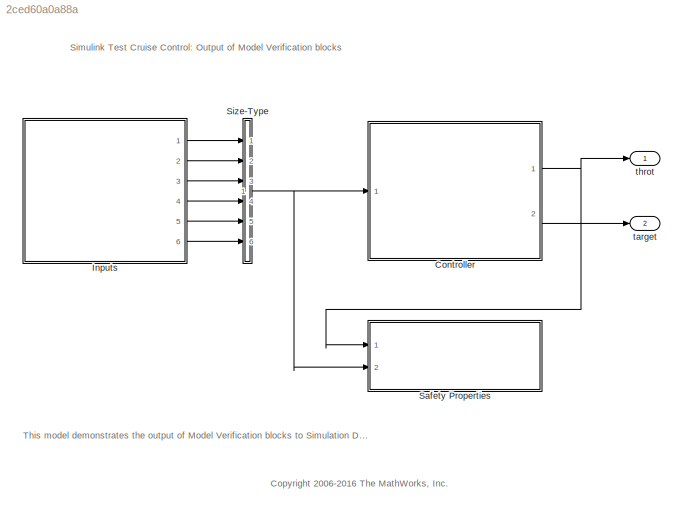
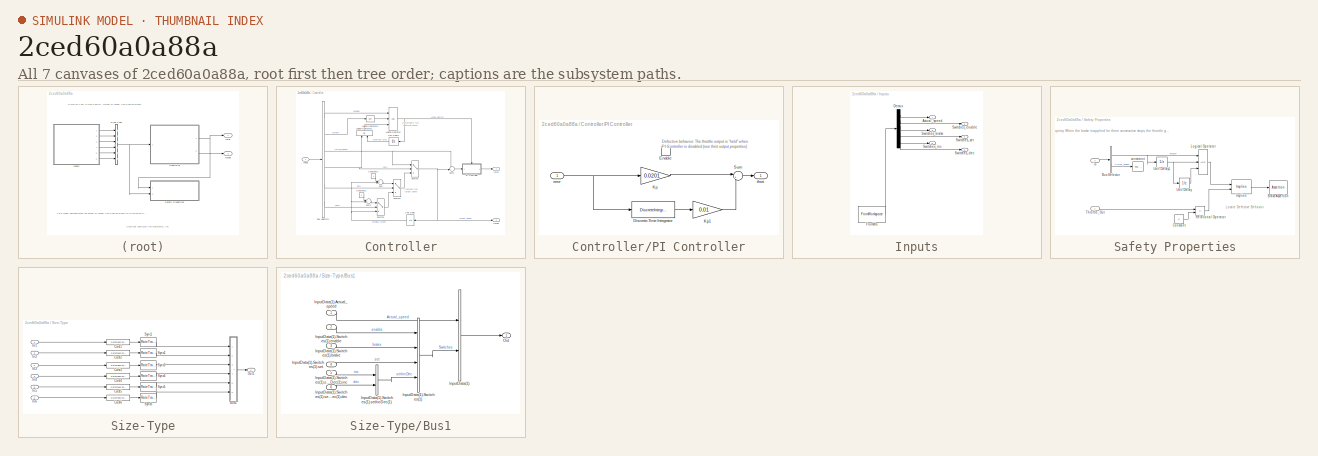
[diagram: thumbnail index - all 7 canvases of the model, root first then tree order]
MODEL slx_2ced60a0a88a
KIND model
CONFIG AbsTol = auto
CONFIG EnableMultiTasking = on
CONFIG FixedStep = 0.01
CONFIG MaxStep = auto
CONFIG MinStep = auto
CONFIG PostLoadFcn = load('sltest_cruise_control_hierbus.mat');
CONFIG RelTol = 1e-3
CONFIG SampleTimeConstraint = Unconstrained
CONFIG Solver = FixedStepDiscrete
CONFIG SolverName = FixedStepDiscrete
CONFIG StartTime = 0.0
CONFIG StopTime = 1
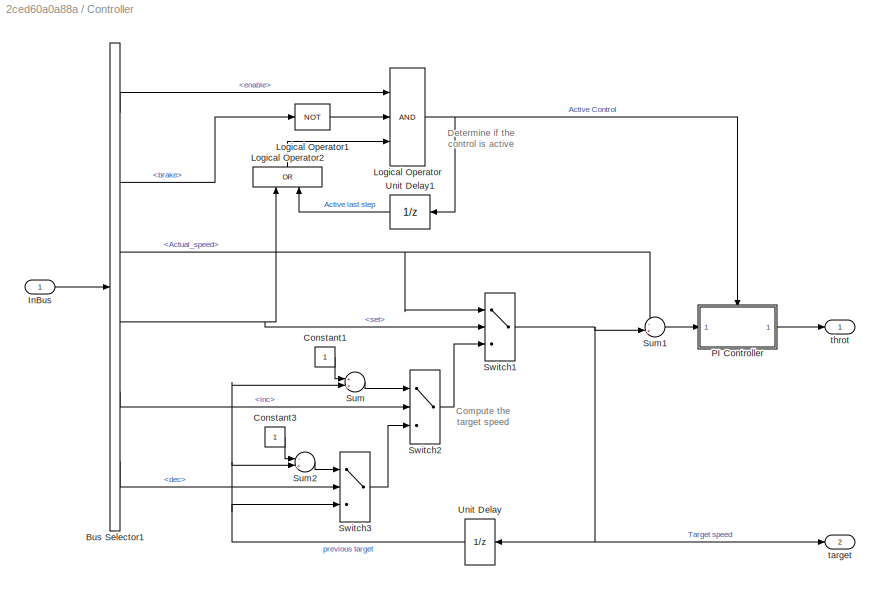
BLOCK [SubSystem] Controller
  Ports = [1, 2]
  RequestExecContextInheritance = off
BLOCK [BusSelector] Controller/Bus Selector1
  OutputAsBus = off
  OutputSignals = Switches.enable,Switches.brake,Actual_speed,Switches.set,Switches.setIncDec.inc,Switches.setIncDec.dec
  Ports = [1, 6]
BLOCK [Constant] Controller/Constant1
BLOCK [Constant] Controller/Constant3
BLOCK [Inport] Controller/InBus
  IconDisplay = Port number
  OutDataTypeStr = Bus: InputBus
BLOCK [Logic] Controller/Logical Operator
  AllPortsSameDT = off
  Inputs = 3
  OutDataTypeStr = boolean
  Ports = [3, 1]
BLOCK [Logic] Controller/Logical Operator1
  AllPortsSameDT = off
  Operator = NOT
  OutDataTypeStr = boolean
  Ports = [1, 1]
BLOCK [Logic] Controller/Logical Operator2
  AllPortsSameDT = off
  Operator = OR
  OutDataTypeStr = boolean
  Ports = [2, 1]
BLOCK [SubSystem] Controller/PI Controller
  Ports = [1, 1, 1]
  RequestExecContextInheritance = off
BLOCK [DiscreteIntegrator] Controller/PI Controller/Discrete-Time Integrator
  ICPrevOutput = DiscIntNeverNeededParam
  ICPrevScaledInput = DiscIntNeverNeededParam
  LimitOutput = on
  LowerSaturationLimit = -5
  Ports = [1, 1]
  SampleTime = 0.01
  UpperSaturationLimit = 5
BLOCK [EnablePort] Controller/PI Controller/Enable
  Ports = []
  PropagateVarSize = During execution
BLOCK [Gain] Controller/PI Controller/Kp
  Gain = 0.0201
  OutDataTypeStr = Inherit: Inherit via internal rule
  ParamDataTypeStr = Inherit: Inherit via internal rule
  SaturateOnIntegerOverflow = off
BLOCK [Gain] Controller/PI Controller/Kp1
  Gain = 0.01
  OutDataTypeStr = Inherit: Inherit via internal rule
  ParamDataTypeStr = Inherit: Inherit via internal rule
  SaturateOnIntegerOverflow = off
BLOCK [Sum] Controller/PI Controller/Sum
  IconShape = round
  InputSameDT = off
  Inputs = |++
  OutDataTypeStr = Inherit: Inherit via internal rule
  Ports = [2, 1]
  SaturateOnIntegerOverflow = off
BLOCK [Inport] Controller/PI Controller/error
  IconDisplay = Port number
BLOCK [Outport] Controller/PI Controller/throt
  IconDisplay = Port number
  InitialOutput = 0
  OutputWhenDisabled = reset
BLOCK [Sum] Controller/Sum
  IconShape = round
  InputSameDT = off
  Inputs = ++|
  OutDataTypeStr = Inherit: Inherit via internal rule
  Ports = [2, 1]
  SaturateOnIntegerOverflow = off
BLOCK [Sum] Controller/Sum1
  IconShape = round
  InputSameDT = off
  Inputs = -+|
  OutDataTypeStr = Inherit: Inherit via internal rule
  Ports = [2, 1]
  SaturateOnIntegerOverflow = off
BLOCK [Sum] Controller/Sum2
  IconShape = round
  InputSameDT = off
  Inputs = -+|
  OutDataTypeStr = Inherit: Inherit via internal rule
  Ports = [2, 1]
  SaturateOnIntegerOverflow = off
BLOCK [Switch] Controller/Switch1
  Criteria = u2 ~= 0
  InputSameDT = off
  SaturateOnIntegerOverflow = off
BLOCK [Switch] Controller/Switch2
  Criteria = u2 ~= 0
  InputSameDT = off
  SaturateOnIntegerOverflow = off
BLOCK [Switch] Controller/Switch3
  Criteria = u2 ~= 0
  InputSameDT = off
  SaturateOnIntegerOverflow = off
BLOCK [UnitDelay] Controller/Unit Delay
  SampleTime = 0.01
BLOCK [UnitDelay] Controller/Unit Delay1
  SampleTime = 0.01
BLOCK [Outport] Controller/target
  IconDisplay = Port number
  Port = 2
BLOCK [Outport] Controller/throt
  IconDisplay = Port number
BLOCK [SubSystem] Inputs
  ClipboardFcn = sigbuilder_block('clipboard');
  CloseFcn = sigbuilder_block('close');
  ContinueFcn = sigbuilder_block('continue');
  CopyFcn = sigbuilder_block('copy');
  DeleteFcn = sigbuilder_block('delete');
  LoadFcn = sigbuilder_block('load');
  MaskHideContents = on
  ModelCloseFcn = sigbuilder_block('modelClose');
  NameChangeFcn = sigbuilder_block('namechange');
  OpenFcn = sigbuilder_block('open',[171 169.5 519.75 474 ]);
  PauseFcn = sigbuilder_block('pause');
  Ports = [0, 6]
  PreSaveFcn = sigbuilder_block('preSave');
  RequestExecContextInheritance = off
  StartFcn = sigbuilder_block('start');
  StopFcn = sigbuilder_block('stop');
  Tag = STV Subsys
BLOCK [Outport] Inputs/Actual_speed
  IconDisplay = Port number
  Tag = STV Outport
BLOCK [Demux] Inputs/Demux
  Outputs = 6
  Ports = [1, 6]
  Tag = STV Demux
BLOCK [FromWorkspace] Inputs/FromWs
  SampleTime = 0
  Tag = STV FromWs
  VariableName = tuvar
BLOCK [Outport] Inputs/Switches_brake
  IconDisplay = Port number
  Port = 3
  Tag = STV Outport
BLOCK [Outport] Inputs/Switches_dec
  IconDisplay = Port number
  Port = 6
  Tag = STV Outport
BLOCK [Outport] Inputs/Switches_enable
  IconDisplay = Port number
  Port = 2
  Tag = STV Outport
BLOCK [Outport] Inputs/Switches_inc
  IconDisplay = Port number
  Port = 5
  Tag = STV Outport
BLOCK [Outport] Inputs/Switches_set
  IconDisplay = Port number
  Port = 4
  Tag = STV Outport
BLOCK [SubSystem] Safety Properties
  CopyFcn = sldvsubsys('copy');
  DisableCoverage = on
  LoadFcn = sldvsubsys('check')
  OpenFcn = open_system(gcb,'force');
  Ports = [2]
  PreSaveFcn = set_param(gcb,'SimViewingDevice','on');\nsldvsubsys('check');
  RequestExecContextInheritance = off
  SimViewingDevice = on
  Tag = VerificationSubsystem
  TreatAsAtomicUnit = on
BLOCK [Assertion] Safety Properties/BrakeAssertion
  StopWhenAssertionFail = off
BLOCK [BusSelector] Safety Properties/Bus Selector
  OutputAsBus = off
  OutputSignals = Switches.brake,Actual_speed
  Ports = [1, 2]
BLOCK [Constant] Safety Properties/Constant
  Value = 0
BLOCK [Reference] Safety Properties/Implies  REF=sldvlib/Verification Utilities/Implies
  Ports = [2, 1]
  SourceBlock = sldvlib/Verification Utilities/Implies
  SourceProductBaseCode = DV
  SourceProductName = Simulink Design Verifier
  SourceType = Design Verifier Implies
BLOCK [Logic] Safety Properties/Logical Operator
  AllPortsSameDT = off
  Inputs = 3
  OutDataTypeStr = boolean
  Ports = [3, 1]
BLOCK [RelationalOperator] Safety Properties/Relational Operator
  InputSameDT = off
  Operator = <=
  OutDataTypeStr = boolean
  Ports = [2, 1]
BLOCK [Inport] Safety Properties/Throttle_Out
  IconDisplay = Port number
BLOCK [UnitDelay] Safety Properties/Unit Delay
  SampleTime = -1
BLOCK [UnitDelay] Safety Properties/Unit Delay1
  SampleTime = -1
BLOCK [Reference] Safety Properties/constraint  REF=sldvlib/Objectives and Constraints/Test Condition
  AttributesFormatString = %<intervals>
  Ports = [1]
  SourceBlock = sldvlib/Objectives and Constraints/Test Condition
  SourceProductBaseCode = DV
  SourceProductName = Simulink Design Verifier
  SourceType = Design Verifier Assumption
BLOCK [Inport] Safety Properties/in
  IconDisplay = Port number
  OutDataTypeStr = Bus: InputBus
  Port = 2
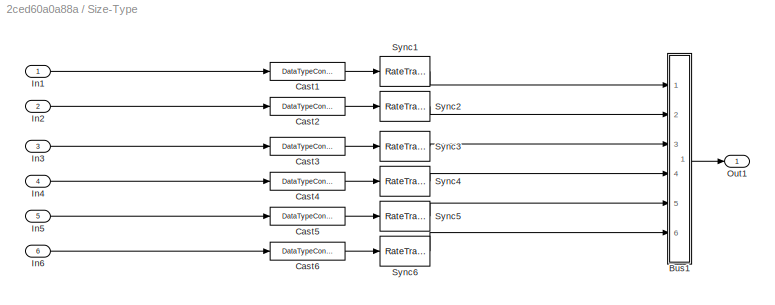
BLOCK [SubSystem] Size-Type
  Ports = [6, 1]
  RequestExecContextInheritance = off
BLOCK [SubSystem] Size-Type/Bus1
  Ports = [6, 1]
  RequestExecContextInheritance = off
BLOCK [BusCreator] Size-Type/Bus1/InputData(1)
  InheritFromInputs = on
  Inputs = 2
  NonVirtualBus = on
  OutDataTypeStr = Bus: InputBus
  Ports = [2, 1]
BLOCK [Inport] Size-Type/Bus1/InputData(1).Actual_speed
  IconDisplay = Port number
BLOCK [BusCreator] Size-Type/Bus1/InputData(1).Switches(1)
  InheritFromInputs = on
  Inputs = 4
  NonVirtualBus = on
  OutDataTypeStr = Bus: Switches
  Ports = [4, 1]
BLOCK [Inport] Size-Type/Bus1/InputData(1).Switches(1).brake
  IconDisplay = Port number
  Port = 3
BLOCK [Inport] Size-Type/Bus1/InputData(1).Switches(1).enable
  IconDisplay = Port number
  Port = 2
BLOCK [Inport] Size-Type/Bus1/InputData(1).Switches(1).set
  IconDisplay = Port number
  Port = 4
BLOCK [BusCreator] Size-Type/Bus1/InputData(1).Switches(1).setIncDec(1)
  InheritFromInputs = on
  Inputs = 2
  NonVirtualBus = on
  OutDataTypeStr = Bus: setpoint
  Ports = [2, 1]
BLOCK [Inport] Size-Type/Bus1/InputData(1).Switches(1).setIncDec(1).dec
  IconDisplay = Port number
  Port = 6
BLOCK [Inport] Size-Type/Bus1/InputData(1).Switches(1).setIncDec(1).inc
  IconDisplay = Port number
  Port = 5
BLOCK [Outport] Size-Type/Bus1/Out
  IconDisplay = Port number
BLOCK [DataTypeConversion] Size-Type/Cast1
  OutDataTypeStr = double
  RndMeth = Nearest
BLOCK [DataTypeConversion] Size-Type/Cast2
  OutDataTypeStr = boolean
  RndMeth = Nearest
BLOCK [DataTypeConversion] Size-Type/Cast3
  OutDataTypeStr = boolean
  RndMeth = Nearest
BLOCK [DataTypeConversion] Size-Type/Cast4
  OutDataTypeStr = boolean
  RndMeth = Nearest
BLOCK [DataTypeConversion] Size-Type/Cast5
  OutDataTypeStr = boolean
  RndMeth = Nearest
BLOCK [DataTypeConversion] Size-Type/Cast6
  OutDataTypeStr = boolean
  RndMeth = Nearest
BLOCK [Inport] Size-Type/In1
  IconDisplay = Port number
BLOCK [Inport] Size-Type/In2
  IconDisplay = Port number
  Port = 2
BLOCK [Inport] Size-Type/In3
  IconDisplay = Port number
  Port = 3
BLOCK [Inport] Size-Type/In4
  IconDisplay = Port number
  Port = 4
BLOCK [Inport] Size-Type/In5
  IconDisplay = Port number
  Port = 5
BLOCK [Inport] Size-Type/In6
  IconDisplay = Port number
  Port = 6
BLOCK [Outport] Size-Type/Out1
  IconDisplay = Port number
BLOCK [RateTransition] Size-Type/Sync1
  OutPortSampleTime = [0.01,0]
BLOCK [RateTransition] Size-Type/Sync2
  OutPortSampleTime = [0.01,0]
BLOCK [RateTransition] Size-Type/Sync3
  OutPortSampleTime = [0.01,0]
BLOCK [RateTransition] Size-Type/Sync4
  OutPortSampleTime = [0.01,0]
BLOCK [RateTransition] Size-Type/Sync5
  OutPortSampleTime = [0.01,0]
BLOCK [RateTransition] Size-Type/Sync6
  OutPortSampleTime = [0.01,0]
BLOCK [Outport] target
  IconDisplay = Port number
  Port = 2
BLOCK [Outport] throt
  IconDisplay = Port number
ANNOTATION (root): This model demonstrates the output of Model Verification blocks to Simulation Data Inspector and the Test Manager. The cruise controller outputs the trottle value based on the difference between the actual and the target speeds. The controller fails the requirement that it disengages after the brake has been applied.
ANNOTATION (root): <copyright redacted>
ANNOTATION (root): Simulink Test Cruise Control: Output of Model Verification blocks
ANNOTATION Controller: Compute the target speed
ANNOTATION Controller: Determine if the control is active
ANNOTATION Controller/PI Controller: Defective behavior: The throttle output is "held" when PI Controller is disabled (see throt output properties)
ANNOTATION Safety Properties: Locate Defective Behavior
ANNOTATION Safety Properties: Property: When the brake is applied for three consecutive steps, the throttle goes to zero.
LINE Controller/Bus Selector1:1 -> Controller/Logical Operator:1
LINE Controller/Bus Selector1:2 -> Controller/Logical Operator1:1
NET Controller/Bus Selector1:3 -> Controller/Sum1:1, Controller/Switch1:1
NET Controller/Bus Selector1:4 -> Controller/Logical Operator2:1, Controller/Switch1:2
LINE Controller/Bus Selector1:5 -> Controller/Switch2:2
LINE Controller/Bus Selector1:6 -> Controller/Switch3:2
LINE Controller/Constant1:1 -> Controller/Sum:1
LINE Controller/Constant3:1 -> Controller/Sum2:1
LINE Controller/InBus:1 -> Controller/Bus Selector1:1
LINE Controller/Logical Operator1:1 -> Controller/Logical Operator:2
LINE Controller/Logical Operator2:1 -> Controller/Logical Operator:3
NET Controller/Logical Operator:1 -> Controller/PI Controller:enable, Controller/Unit Delay1:1
LINE Controller/PI Controller/Discrete-Time Integrator:1 -> Controller/PI Controller/Kp1:1
LINE Controller/PI Controller/Kp1:1 -> Controller/PI Controller/Sum:2
LINE Controller/PI Controller/Kp:1 -> Controller/PI Controller/Sum:1
LINE Controller/PI Controller/Sum:1 -> Controller/PI Controller/throt:1
NET Controller/PI Controller/error:1 -> Controller/PI Controller/Discrete-Time Integrator:1, Controller/PI Controller/Kp:1
LINE Controller/PI Controller:1 -> Controller/throt:1
LINE Controller/Sum1:1 -> Controller/PI Controller:1
LINE Controller/Sum2:1 -> Controller/Switch3:1
LINE Controller/Sum:1 -> Controller/Switch2:1
NET Controller/Switch1:1 -> Controller/Sum1:2, Controller/Unit Delay:1, Controller/target:1
LINE Controller/Switch2:1 -> Controller/Switch1:3
LINE Controller/Switch3:1 -> Controller/Switch2:3
LINE Controller/Unit Delay1:1 -> Controller/Logical Operator2:2
NET Controller/Unit Delay:1 -> Controller/Sum2:2, Controller/Sum:2, Controller/Switch3:3
NET Controller:1 -> Safety Properties:1, throt:1
LINE Controller:2 -> target:1
LINE Inputs/Demux:1 -> Inputs/Actual_speed:1
LINE Inputs/Demux:2 -> Inputs/Switches_enable:1
LINE Inputs/Demux:3 -> Inputs/Switches_brake:1
LINE Inputs/Demux:4 -> Inputs/Switches_set:1
LINE Inputs/Demux:5 -> Inputs/Switches_inc:1
LINE Inputs/Demux:6 -> Inputs/Switches_dec:1
LINE Inputs/FromWs:1 -> Inputs/Demux:1
LINE Inputs:1 -> Size-Type:1
LINE Inputs:2 -> Size-Type:2
LINE Inputs:3 -> Size-Type:3
LINE Inputs:4 -> Size-Type:4
LINE Inputs:5 -> Size-Type:5
LINE Inputs:6 -> Size-Type:6
LINE Size-Type/Bus1/InputData(1).Actual_speed:1 -> Size-Type/Bus1/InputData(1):1
LINE Size-Type/Bus1/InputData(1).Switches(1).brake:1 -> Size-Type/Bus1/InputData(1).Switches(1):2
LINE Size-Type/Bus1/InputData(1).Switches(1).enable:1 -> Size-Type/Bus1/InputData(1).Switches(1):1
LINE Size-Type/Bus1/InputData(1).Switches(1).set:1 -> Size-Type/Bus1/InputData(1).Switches(1):3
LINE Size-Type/Bus1/InputData(1).Switches(1).setIncDec(1).dec:1 -> Size-Type/Bus1/InputData(1).Switches(1).setIncDec(1):2
LINE Size-Type/Bus1/InputData(1).Switches(1).setIncDec(1).inc:1 -> Size-Type/Bus1/InputData(1).Switches(1).setIncDec(1):1
LINE Size-Type/Bus1/InputData(1).Switches(1).setIncDec(1):1 -> Size-Type/Bus1/InputData(1).Switches(1):4
LINE Size-Type/Bus1/InputData(1).Switches(1):1 -> Size-Type/Bus1/InputData(1):2
LINE Size-Type/Bus1/InputData(1):1 -> Size-Type/Bus1/Out:1
LINE Size-Type/Bus1:1 -> Size-Type/Out1:1
LINE Size-Type/Cast1:1 -> Size-Type/Sync1:1
LINE Size-Type/Cast2:1 -> Size-Type/Sync2:1
LINE Size-Type/Cast3:1 -> Size-Type/Sync3:1
LINE Size-Type/Cast4:1 -> Size-Type/Sync4:1
LINE Size-Type/Cast5:1 -> Size-Type/Sync5:1
LINE Size-Type/Cast6:1 -> Size-Type/Sync6:1
LINE Size-Type/In1:1 -> Size-Type/Cast1:1
LINE Size-Type/In2:1 -> Size-Type/Cast2:1
LINE Size-Type/In3:1 -> Size-Type/Cast3:1
LINE Size-Type/In4:1 -> Size-Type/Cast4:1
LINE Size-Type/In5:1 -> Size-Type/Cast5:1
LINE Size-Type/In6:1 -> Size-Type/Cast6:1
LINE Size-Type/Sync1:1 -> Size-Type/Bus1:1
LINE Size-Type/Sync2:1 -> Size-Type/Bus1:2
LINE Size-Type/Sync3:1 -> Size-Type/Bus1:3
LINE Size-Type/Sync4:1 -> Size-Type/Bus1:4
LINE Size-Type/Sync5:1 -> Size-Type/Bus1:5
LINE Size-Type/Sync6:1 -> Size-Type/Bus1:6
NET Size-Type:1 -> Controller:1, Safety Properties:2
note: NET lines group one-source signal fan-out (src -> all destinations, sorted); 1:1 wires keep LINE
